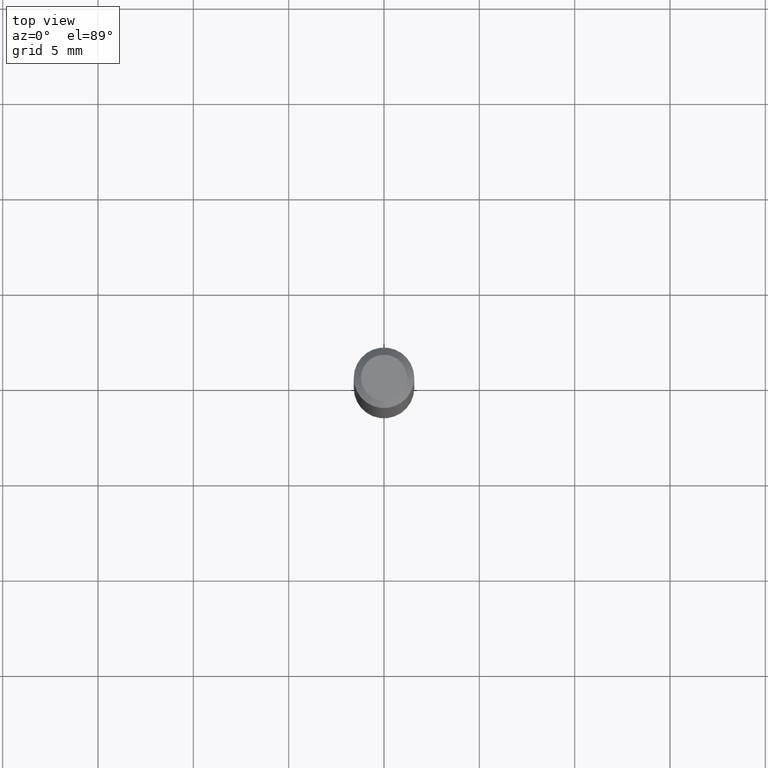
[diagram: clean part render]
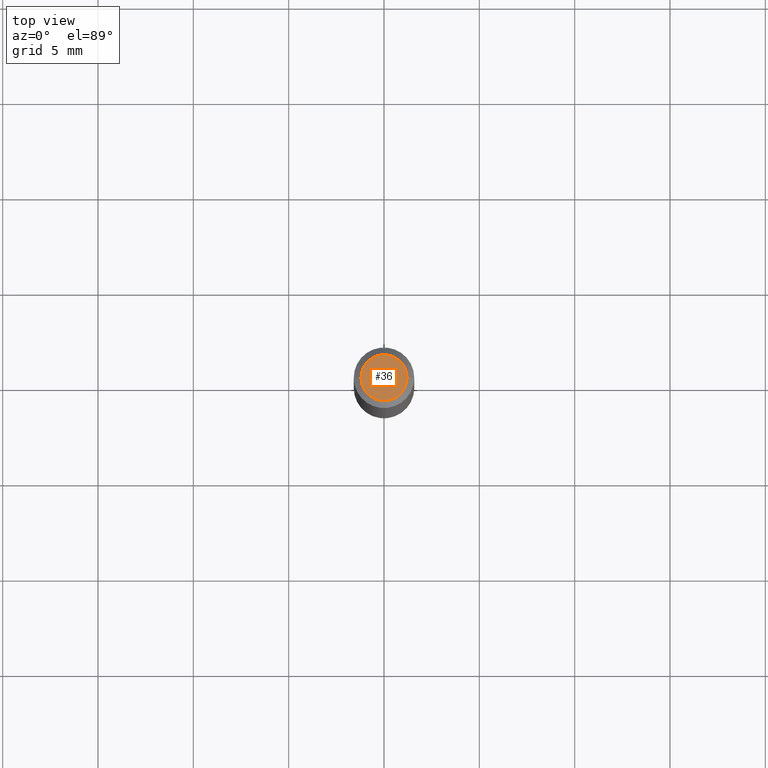
[diagram: same view with one face highlighted and labeled with its STEP entity id]
A machine part, top view. The second image highlights one B-rep face of the part: STEP entity #36.
In plain terms, the highlighted planar face has unit normal (0, -0, -1).
Its self-contained STEP definition (entity closure, byte-faithful):
#13 = DIRECTION ( 'NONE',  ( 1.000000000000000000, -6.982962677686267499E-15, 4.852736867747366768E-29 ) ) ;
#24 = AXIS2_PLACEMENT_3D ( 'NONE', #378, #51, #13 ) ;
#32 = EDGE_CURVE ( 'NONE', #432, #58, #48, .T. ) ;
#36 = ADVANCED_FACE ( 'NONE', ( #406 ), #47, .F. ) ;
#47 = PLANE ( 'NONE',  #346 ) ;
#48 = CIRCLE ( 'NONE', #79, 0.04749999999999999362 ) ;
#51 = DIRECTION ( 'NONE',  ( -2.445468806185136597E-29, 3.491481338843145583E-15, 1.000000000000000000 ) ) ;
#58 = VERTEX_POINT ( 'NONE', #306 ) ;
#72 = DIRECTION ( 'NONE',  ( 1.000000000000000000, -6.982962677686267499E-15, 4.852736867747366768E-29 ) ) ;
#79 = AXIS2_PLACEMENT_3D ( 'NONE', #374, #148, #72 ) ;
#84 = ORIENTED_EDGE ( 'NONE', *, *, #261, .T. ) ;
#106 = ORIENTED_EDGE ( 'NONE', *, *, #32, .T. ) ;
#148 = DIRECTION ( 'NONE',  ( -2.445468806185136597E-29, 3.491481338843145583E-15, 1.000000000000000000 ) ) ;
#228 = DIRECTION ( 'NONE',  ( 2.438088387897960049E-29, -3.491481338843145188E-15, -1.000000000000000000 ) ) ;
#261 = EDGE_CURVE ( 'NONE', #58, #432, #290, .T. ) ;
#290 = CIRCLE ( 'NONE', #24, 0.04749999999999999362 ) ;
#306 = CARTESIAN_POINT ( 'NONE',  ( 0.04749999999999999362, -4.035134999187572707E-16, 2.926320210456084224E-16 ) ) ;
#346 = AXIS2_PLACEMENT_3D ( 'NONE', #379, #228, #410 ) ;
#374 = CARTESIAN_POINT ( 'NONE',  ( -7.156224791579416592E-45, 1.021719240628687565E-30, 2.926320210456058586E-16 ) ) ;
#378 = CARTESIAN_POINT ( 'NONE',  ( -7.156224791579416592E-45, 1.021719240628687565E-30, 2.926320210456058586E-16 ) ) ;
#379 = CARTESIAN_POINT ( 'NONE',  ( 3.316907271900976096E-16, 0.04749999999999999362, -1.952935307224647024E-17 ) ) ;
#404 = CARTESIAN_POINT ( 'NONE',  ( -0.04749999999999999362, 3.578768372314215929E-16, 2.926320210456034427E-16 ) ) ;
#406 = FACE_OUTER_BOUND ( 'NONE', #456, .T. ) ;
#410 = DIRECTION ( 'NONE',  ( -1.000000000000000000, 6.982962677686265922E-15, -4.876176775795935793E-29 ) ) ;
#432 = VERTEX_POINT ( 'NONE', #404 ) ;
#456 = EDGE_LOOP ( 'NONE', ( #106, #84 ) ) ;